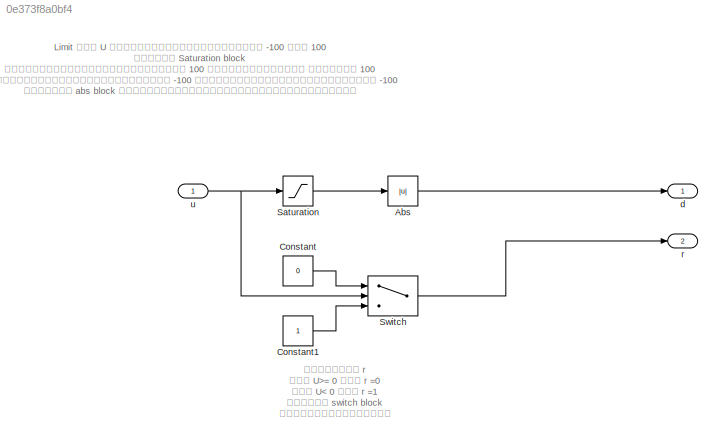
MODEL slx_0e373f8a0bf4
KIND model
CONFIG AbsTol = auto
CONFIG EnableMultiTasking = off
CONFIG FixedStep = auto
CONFIG MaxStep = auto
CONFIG MinStep = auto
CONFIG RelTol = 1e-3
CONFIG SampleTimeConstraint = Unconstrained
CONFIG SolverName = VariableStepAuto
CONFIG StartTime = 0.0
CONFIG StopTime = 10.0
BLOCK [Abs] Abs
  SaturateOnIntegerOverflow = off
BLOCK [Constant] Constant
  Value = 0
BLOCK [Constant] Constant1
BLOCK [Saturate] Saturation
  LowerLimit = -100
  UpperLimit = 100
BLOCK [Switch] Switch
  Criteria = u2 > Threshold
  InputSameDT = off
  SaturateOnIntegerOverflow = off
BLOCK [Outport] d
BLOCK [Outport] r
  Port = 2
BLOCK [Inport] u
ANNOTATION (root): Limit ค่า U ที่เข้ามาให้อยู่ในช่วง -100 ถึง 100 โดยใช้ Saturation block ถ้าค่าที่รับมามีค่ามากกว่า 100 จะปรับให้เหลือ เท่ากับ 100 ถ้าค่าที่รับมามีค่าน้อยกว่า -100 จะปรับให้เหลือไม่ต่ำไปกว่า -100 แล้วใช้ abs block เพื่อให้ค่าที่ออกมาเป็นบวกเท่านั้น
ANNOTATION (root): กำหนดค่า r ถ้า U>= 0 ให้ r =0 ถ้า U< 0 ให้ r =1 โดยใช้ switch block ในการเปรียบเทียบ
LINE Abs:1 -> d:1
LINE Constant1:1 -> Switch:3
LINE Constant:1 -> Switch:1
LINE Saturation:1 -> Abs:1
LINE Switch:1 -> r:1
NET u:1 -> Saturation:1, Switch:2
note: NET lines group one-source signal fan-out (src -> all destinations, sorted); 1:1 wires keep LINE
